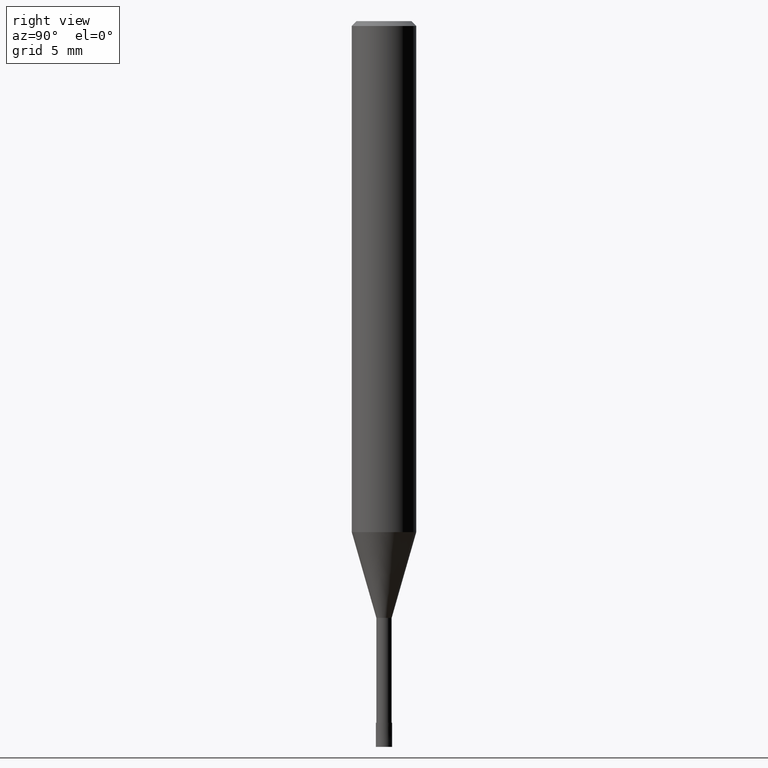
[diagram: clean part render]
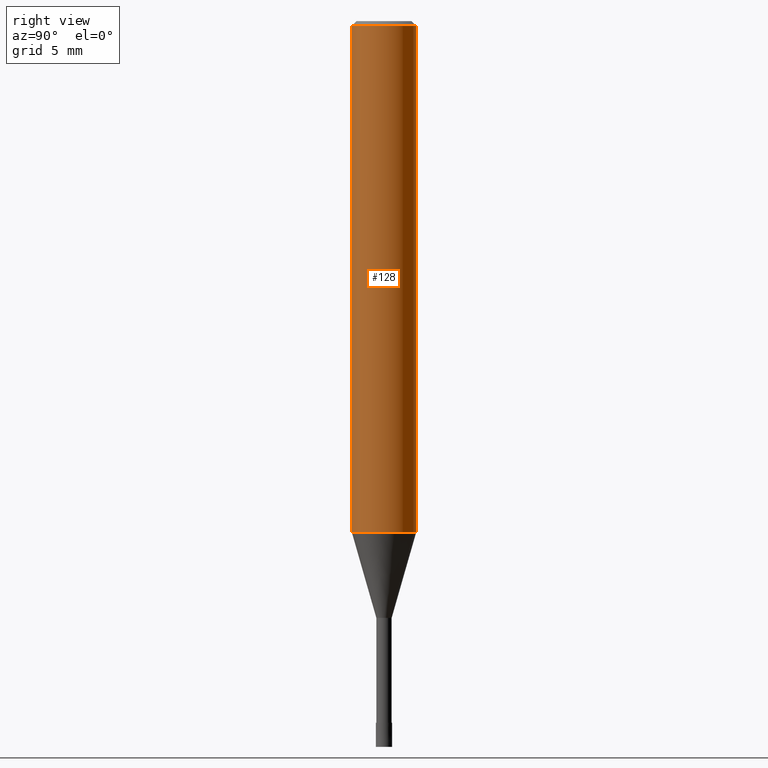
[diagram: same view with one face highlighted and labeled with its STEP entity id]
A machine part, right view. The second image highlights one B-rep face of the part: STEP entity #128.
In plain terms, the highlighted cylindrical surface (edge-blend (fillet) strip) has radius 2 mm, axis along (-0, -0, 1).
Its self-contained STEP definition (entity closure, byte-faithful):
#92=EDGE_CURVE('',#120,#168,#229,.T.);
#116=EDGE_CURVE('',#168,#158,#256,.T.);
#120=VERTEX_POINT('',#261);
#128=ADVANCED_FACE('',(#269),#270,.T.);
#134=EDGE_CURVE('',#158,#206,#277,.T.);
#158=VERTEX_POINT('',#302);
#168=VERTEX_POINT('',#313);
#202=EDGE_CURVE('',#120,#206,#352,.T.);
#206=VERTEX_POINT('',#357);
#229=LINE('',#375,#376);
#256=CIRCLE('',#410,2.0);
#261=CARTESIAN_POINT('',(0.0,2.0,-0.300000000000001));
#269=FACE_OUTER_BOUND('',#425,.T.);
#270=CYLINDRICAL_SURFACE('',#426,2.0);
#277=LINE('',#435,#436);
#302=CARTESIAN_POINT('',(2.44921270764475E-016,-2.0,-31.682));
#313=CARTESIAN_POINT('',(0.0,2.0,-31.682));
#352=CIRCLE('',#531,2.0);
#357=CARTESIAN_POINT('',(2.44921270764475E-016,-2.0,-0.300000000000001));
#375=CARTESIAN_POINT('',(-2.44921270764475E-016,2.0,-15.991));
#376=VECTOR('',#542,1.0);
#410=AXIS2_PLACEMENT_3D('',#575,#576,#577);
#425=EDGE_LOOP('',(#593,#594,#595,#596));
#426=AXIS2_PLACEMENT_3D('',#597,#598,#599);
#435=CARTESIAN_POINT('',(2.44921270764475E-016,-2.0,-15.991));
#436=VECTOR('',#611,1.0);
#531=AXIS2_PLACEMENT_3D('',#695,#696,#697);
#542=DIRECTION('',(0.0,0.0,-1.0));
#575=CARTESIAN_POINT('',(0.0,0.0,-31.682));
#576=DIRECTION('',(0.0,0.0,-1.0));
#577=DIRECTION('',(0.0,1.0,0.0));
#593=ORIENTED_EDGE('',*,*,#92,.F.);
#594=ORIENTED_EDGE('',*,*,#202,.T.);
#595=ORIENTED_EDGE('',*,*,#134,.F.);
#596=ORIENTED_EDGE('',*,*,#116,.F.);
#597=CARTESIAN_POINT('',(0.0,0.0,-15.991));
#598=DIRECTION('',(-0.0,-0.0,1.0));
#599=DIRECTION('',(0.0,1.0,0.0));
#611=DIRECTION('',(-0.0,-0.0,1.0));
#695=CARTESIAN_POINT('',(0.0,0.0,-0.300000000000001));
#696=DIRECTION('',(0.0,0.0,-1.0));
#697=DIRECTION('',(0.0,1.0,0.0));